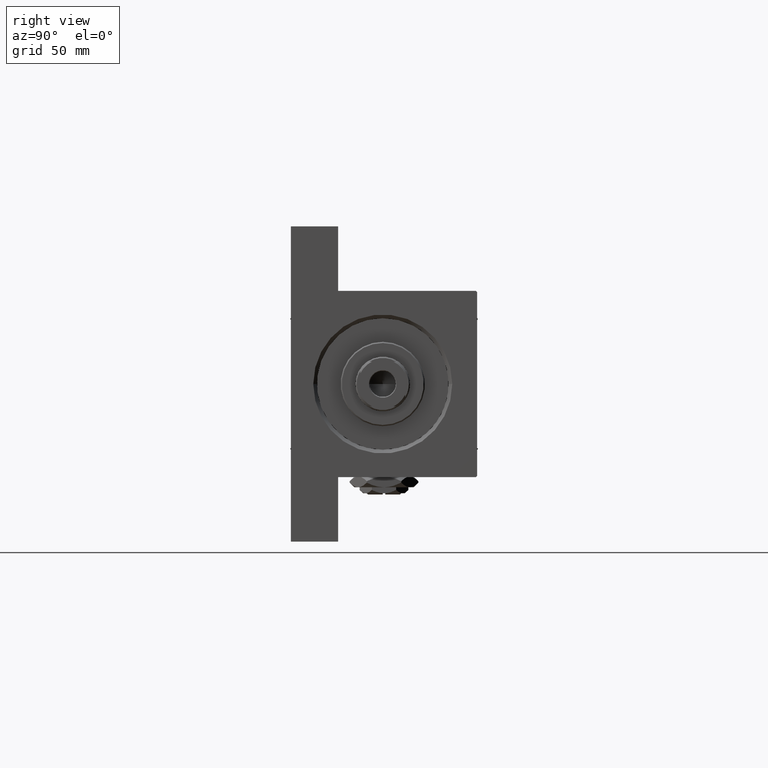
[diagram: clean part render]
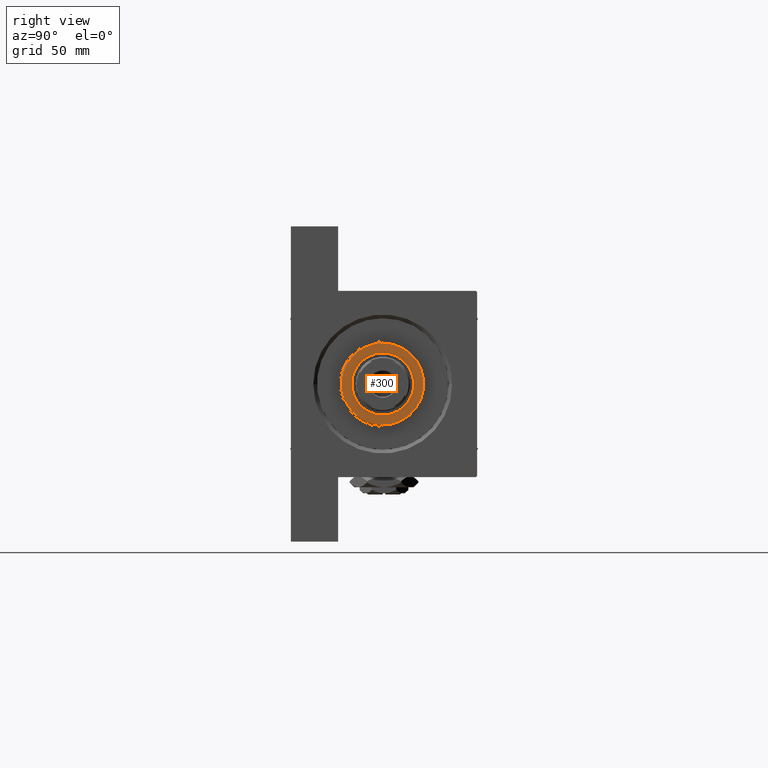
[diagram: same view with one face highlighted and labeled with its STEP entity id]
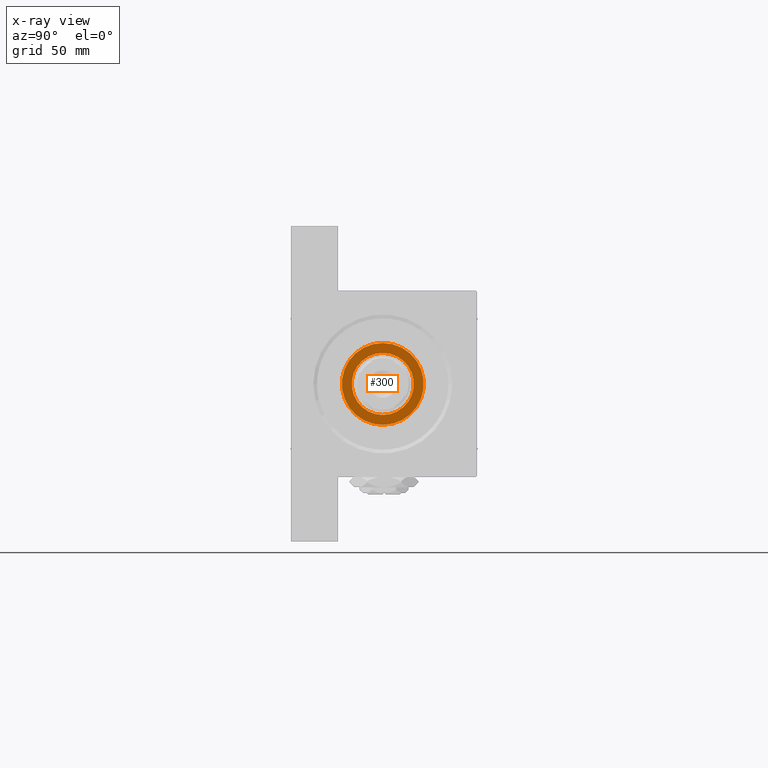
[diagram: x-ray of the same camera — body ghosted, the highlighted face saturated]
A machine part, right view. The second image highlights one B-rep face of the part: STEP entity #300.
The next image is the same camera in x-ray: the body ghosted, the highlighted face saturated — about 0% of this face is hidden behind the body in this view.
In plain terms, the highlighted planar face has unit normal (1, 0, 0).
Its self-contained STEP definition (entity closure, byte-faithful):
#162 = DIRECTION ( 'NONE',  ( 1.000000000000000000, 0.000000000000000000, 0.000000000000000000 ) ) ;
#300 = ADVANCED_FACE ( 'NONE', ( #18707, #11485 ), #12212, .T. ) ;
#665 = EDGE_CURVE ( 'NONE', #46997, #31915, #8301, .T. ) ;
#745 = ORIENTED_EDGE ( 'NONE', *, *, #7271, .T. ) ;
#869 = VERTEX_POINT ( 'NONE', #40638 ) ;
#3198 = AXIS2_PLACEMENT_3D ( 'NONE', #33593, #49053, #19387 ) ;
#3552 = EDGE_LOOP ( 'NONE', ( #44977, #745 ) ) ;
#3976 = CIRCLE ( 'NONE', #3198, 12.50000000000000000 ) ;
#4916 = DIRECTION ( 'NONE',  ( 0.000000000000000000, 0.000000000000000000, 1.000000000000000000 ) ) ;
#7271 = EDGE_CURVE ( 'NONE', #31915, #46997, #26021, .T. ) ;
#8301 = CIRCLE ( 'NONE', #13874, 16.50000000000000000 ) ;
#9167 = CARTESIAN_POINT ( 'NONE',  ( 16.50000000000000000, 2.051283388571816887E-15, 37.69999999999999574 ) ) ;
#10434 = CARTESIAN_POINT ( 'NONE',  ( 12.50000000000000000, 0.000000000000000000, 37.69999999999999574 ) ) ;
#11485 = FACE_OUTER_BOUND ( 'NONE', #3552, .T. ) ;
#12212 = PLANE ( 'NONE',  #18607 ) ;
#13874 = AXIS2_PLACEMENT_3D ( 'NONE', #39772, #4916, #42536 ) ;
#15139 = EDGE_LOOP ( 'NONE', ( #20391, #47704 ) ) ;
#18607 = AXIS2_PLACEMENT_3D ( 'NONE', #34141, #22934, #26655 ) ;
#18707 = FACE_BOUND ( 'NONE', #15139, .T. ) ;
#19387 = DIRECTION ( 'NONE',  ( 1.000000000000000000, 0.000000000000000000, 0.000000000000000000 ) ) ;
#20391 = ORIENTED_EDGE ( 'NONE', *, *, #20595, .F. ) ;
#20595 = EDGE_CURVE ( 'NONE', #33985, #869, #39518, .T. ) ;
#22057 = DIRECTION ( 'NONE',  ( 1.000000000000000000, 0.000000000000000000, 0.000000000000000000 ) ) ;
#22934 = DIRECTION ( 'NONE',  ( 0.000000000000000000, 0.000000000000000000, 1.000000000000000000 ) ) ;
#23646 = AXIS2_PLACEMENT_3D ( 'NONE', #33780, #45495, #162 ) ;
#23673 = CARTESIAN_POINT ( 'NONE',  ( -16.50000000000000000, 0.000000000000000000, 37.69999999999999574 ) ) ;
#26021 = CIRCLE ( 'NONE', #23646, 16.50000000000000000 ) ;
#26655 = DIRECTION ( 'NONE',  ( 1.000000000000000000, 0.000000000000000000, -0.000000000000000000 ) ) ;
#29991 = AXIS2_PLACEMENT_3D ( 'NONE', #48961, #36985, #22057 ) ;
#31747 = EDGE_CURVE ( 'NONE', #869, #33985, #3976, .T. ) ;
#31915 = VERTEX_POINT ( 'NONE', #9167 ) ;
#33593 = CARTESIAN_POINT ( 'NONE',  ( 0.000000000000000000, 0.000000000000000000, 37.69999999999999574 ) ) ;
#33780 = CARTESIAN_POINT ( 'NONE',  ( 0.000000000000000000, 0.000000000000000000, 37.69999999999999574 ) ) ;
#33985 = VERTEX_POINT ( 'NONE', #10434 ) ;
#34141 = CARTESIAN_POINT ( 'NONE',  ( 0.000000000000000000, 0.000000000000000000, 37.69999999999999574 ) ) ;
#36985 = DIRECTION ( 'NONE',  ( 0.000000000000000000, 0.000000000000000000, 1.000000000000000000 ) ) ;
#39518 = CIRCLE ( 'NONE', #29991, 12.50000000000000000 ) ;
#39772 = CARTESIAN_POINT ( 'NONE',  ( 0.000000000000000000, 0.000000000000000000, 37.69999999999999574 ) ) ;
#40638 = CARTESIAN_POINT ( 'NONE',  ( -12.50000000000000000, 1.530808498934191521E-15, 37.69999999999999574 ) ) ;
#42536 = DIRECTION ( 'NONE',  ( 1.000000000000000000, 0.000000000000000000, 0.000000000000000000 ) ) ;
#44977 = ORIENTED_EDGE ( 'NONE', *, *, #665, .T. ) ;
#45495 = DIRECTION ( 'NONE',  ( 0.000000000000000000, 0.000000000000000000, 1.000000000000000000 ) ) ;
#46997 = VERTEX_POINT ( 'NONE', #23673 ) ;
#47704 = ORIENTED_EDGE ( 'NONE', *, *, #31747, .F. ) ;
#48961 = CARTESIAN_POINT ( 'NONE',  ( 0.000000000000000000, 0.000000000000000000, 37.69999999999999574 ) ) ;
#49053 = DIRECTION ( 'NONE',  ( 0.000000000000000000, 0.000000000000000000, 1.000000000000000000 ) ) ;